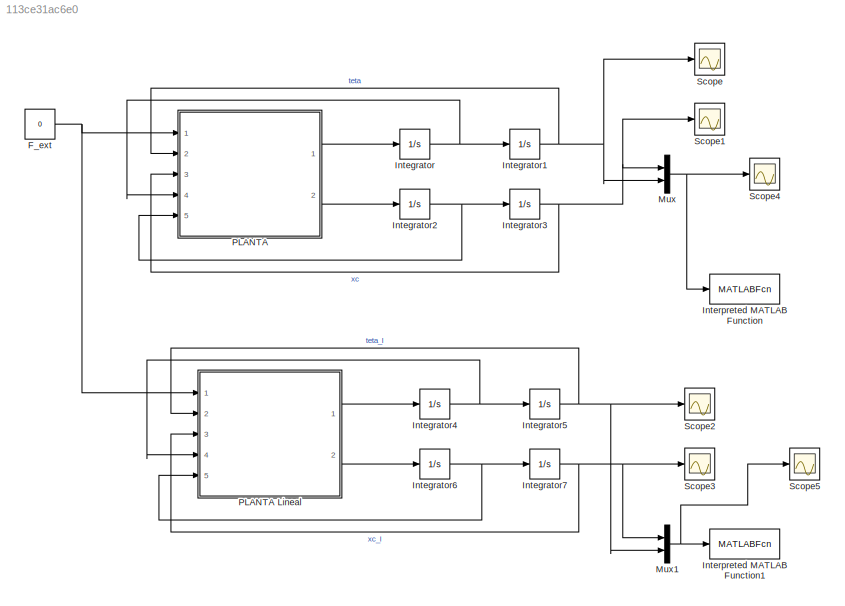
MODEL slx_113ce31ac6e0
KIND model
CONFIG AbsTol = auto
CONFIG EnableMultiTasking = off
CONFIG FixedStep = auto
CONFIG MaxStep = auto
CONFIG MinStep = auto
CONFIG RelTol = 1e-3
CONFIG SampleTimeConstraint = Unconstrained
CONFIG SolverName = VariableStepAuto
CONFIG StartTime = 0.0
CONFIG StopTime = 2
BLOCK [Constant] F_ext
  Value = 0
BLOCK [Integrator] Integrator
  InitialCondition = pi/4
  Ports = [1, 1]
BLOCK [Integrator] Integrator1
  Ports = [1, 1]
BLOCK [Integrator] Integrator2
  Ports = [1, 1]
BLOCK [Integrator] Integrator3
  Ports = [1, 1]
BLOCK [Integrator] Integrator4
  InitialCondition = pi/4
  Ports = [1, 1]
BLOCK [Integrator] Integrator5
  Ports = [1, 1]
BLOCK [Integrator] Integrator6
  Ports = [1, 1]
BLOCK [Integrator] Integrator7
  Ports = [1, 1]
BLOCK [MATLABFcn] Interpreted MATLAB Function
  Commented = on
  MATLABFcn = animacion_pendulo_carro
  OutputDimensions = 0
  Ports = [1]
BLOCK [MATLABFcn] Interpreted MATLAB Function1
  MATLABFcn = animacion_pendulo_carro
  OutputDimensions = 0
  Ports = [1]
BLOCK [Mux] Mux
  DisplayOption = bar
  Inputs = 2
  Ports = [2, 1]
BLOCK [Mux] Mux1
  DisplayOption = bar
  Inputs = 2
  Ports = [2, 1]
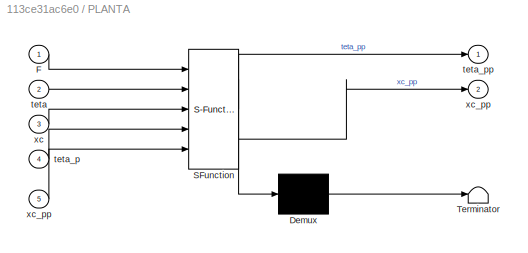
BLOCK [SubSystem] PLANTA
  ErrorFcn = Stateflow.Translate.translate
  PermitHierarchicalResolution = ExplicitOnly
  Ports = [5, 2]
  RequestExecContextInheritance = off
  SFBlockType = MATLAB Function
  TreatAsAtomicUnit = on
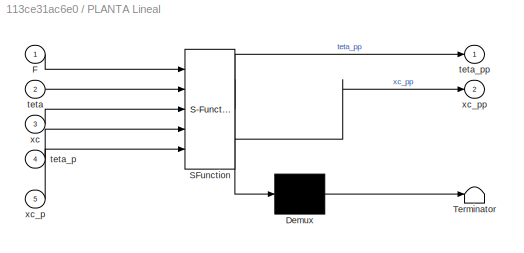
BLOCK [SubSystem] PLANTA Lineal
  ErrorFcn = Stateflow.Translate.translate
  PermitHierarchicalResolution = ExplicitOnly
  Ports = [5, 2]
  RequestExecContextInheritance = off
  SFBlockType = MATLAB Function
  TreatAsAtomicUnit = on
BLOCK [Demux] PLANTA Lineal/ Demux 
  Outputs = 1
  Ports = [1, 1]
BLOCK [S-Function] PLANTA Lineal/ SFunction 
  EnableBusSupport = on
  FunctionName = sf_sfun
  PortCounts = [5 3]
  Ports = [5, 3]
  SFcnIsStateOwnerBlock = off
  SFunctionDeploymentMode = off
  Tag = Stateflow S-Function 1
BLOCK [Terminator] PLANTA Lineal/ Terminator 
BLOCK [Inport] PLANTA Lineal/F
BLOCK [Inport] PLANTA Lineal/teta
  Port = 2
BLOCK [Inport] PLANTA Lineal/teta_p
  Port = 4
BLOCK [Outport] PLANTA Lineal/teta_pp
BLOCK [Inport] PLANTA Lineal/xc
  Port = 3
BLOCK [Inport] PLANTA Lineal/xc_p
  Port = 5
BLOCK [Outport] PLANTA Lineal/xc_pp
  Port = 2
BLOCK [Demux] PLANTA/ Demux 
  Outputs = 1
  Ports = [1, 1]
BLOCK [S-Function] PLANTA/ SFunction 
  EnableBusSupport = on
  FunctionName = sf_sfun
  PortCounts = [5 3]
  Ports = [5, 3]
  SFcnIsStateOwnerBlock = off
  SFunctionDeploymentMode = off
  Tag = Stateflow S-Function 2
BLOCK [Terminator] PLANTA/ Terminator 
BLOCK [Inport] PLANTA/F
BLOCK [Inport] PLANTA/teta
  Port = 2
BLOCK [Inport] PLANTA/teta_p
  Port = 4
BLOCK [Outport] PLANTA/teta_pp
BLOCK [Inport] PLANTA/xc
  Port = 3
BLOCK [Outport] PLANTA/xc_pp
  Port = 2
BLOCK [Inport] PLANTA/xc_pp 
  Port = 5
BLOCK [Scope] Scope
  Floating = off
  NumInputPorts = 1
  Ports = [1]
  ScopeSpecificationString = Simulink.scopes.TimeScopeBlockCfg('CurrentConfiguration', extmgr.ConfigurationSet(extmgr.Configuration('Core','General UI',true),extmgr.Configuration('Core','Source UI',true),extmgr.Configuration('Sources','WiredSimulink',true),extmgr.Configuration('Visuals','Time Domain',true,'SerializedDisplays',{struct('MinYLimReal','-0.86429','MaxYLimReal','7.77864','YLabelReal','','MinYLimMag','0.00000','MaxY...<+1356ch>
BLOCK [Scope] Scope1
  Floating = off
  NumInputPorts = 1
  Ports = [1]
  ScopeSpecificationString = Simulink.scopes.TimeScopeBlockCfg('CurrentConfiguration', extmgr.ConfigurationSet(extmgr.Configuration('Core','General UI',true),extmgr.Configuration('Core','Source UI',true),extmgr.Configuration('Sources','WiredSimulink',true,'DataLoggingVariableName','ScopeData1'),extmgr.Configuration('Visuals','Time Domain',true,'SerializedDisplays',{struct('MinYLimReal','-0.13554','MaxYLimReal','0.34381','YLab...<+1395ch>
BLOCK [Scope] Scope2
  Floating = off
  NumInputPorts = 1
  Ports = [1]
  ScopeSpecificationString = Simulink.scopes.TimeScopeBlockCfg('CurrentConfiguration', extmgr.ConfigurationSet(extmgr.Configuration('Core','General UI',true),extmgr.Configuration('Core','Source UI',true),extmgr.Configuration('Sources','WiredSimulink',true,'DataLoggingVariableName','ScopeData2'),extmgr.Configuration('Visuals','Time Domain',true,'SerializedDisplays',{struct('MinYLimReal','-466.03394','MaxYLimReal','4194.30545',...<+1417ch>
BLOCK [Scope] Scope3
  Floating = off
  NumInputPorts = 1
  Ports = [1]
  ScopeSpecificationString = Simulink.scopes.TimeScopeBlockCfg('CurrentConfiguration', extmgr.ConfigurationSet(extmgr.Configuration('Core','General UI',true),extmgr.Configuration('Core','Source UI',true),extmgr.Configuration('Sources','WiredSimulink',true,'DataLoggingVariableName','ScopeData3'),extmgr.Configuration('Visuals','Time Domain',true,'SerializedDisplays',{struct('MinYLimReal','-699.08279','MaxYLimReal','77.67587','Y...<+1407ch>
BLOCK [Scope] Scope4
  Floating = off
  NumInputPorts = 1
  Ports = [1]
  ScopeSpecificationString = Simulink.scopes.TimeScopeBlockCfg('CurrentConfiguration', extmgr.ConfigurationSet(extmgr.Configuration('Core','General UI',true),extmgr.Configuration('Core','Source UI',true),extmgr.Configuration('Sources','WiredSimulink',true,'DataLoggingVariableName','ScopeData1'),extmgr.Configuration('Visuals','Time Domain',true,'SerializedDisplays',{struct('MinYLimReal','-0.96285','MaxYLimReal','7.78959','YLab...<+1398ch>
BLOCK [Scope] Scope5
  Floating = off
  NumInputPorts = 1
  Ports = [1]
  ScopeSpecificationString = Simulink.scopes.TimeScopeBlockCfg('CurrentConfiguration', extmgr.ConfigurationSet(extmgr.Configuration('Core','General UI',true),extmgr.Configuration('Core','Source UI',true),extmgr.Configuration('Sources','WiredSimulink',true,'DataLoggingVariableName','ScopeData2'),extmgr.Configuration('Visuals','Time Domain',true,'SerializedDisplays',{struct('MinYLimReal','-1164.79034','MaxYLimReal','4271.94505'...<+1426ch>
NET F_ext:1 -> PLANTA Lineal:1, PLANTA:1
NET Integrator1:1 -> Mux:2, PLANTA:2, Scope:1
NET Integrator2:1 -> Integrator3:1, PLANTA:5
NET Integrator3:1 -> Mux:1, PLANTA:3, Scope1:1
NET Integrator4:1 -> Integrator5:1, PLANTA Lineal:4
NET Integrator5:1 -> Mux1:2, PLANTA Lineal:2, Scope2:1
NET Integrator6:1 -> Integrator7:1, PLANTA Lineal:5
NET Integrator7:1 -> Mux1:1, PLANTA Lineal:3, Scope3:1
NET Integrator:1 -> Integrator1:1, PLANTA:4
NET Mux1:1 -> Interpreted MATLAB Function1:1, Scope5:1
NET Mux:1 -> Interpreted MATLAB Function:1, Scope4:1
LINE PLANTA Lineal:1 -> Integrator4:1
LINE PLANTA Lineal:2 -> Integrator6:1
LINE PLANTA:1 -> Integrator:1
LINE PLANTA:2 -> Integrator2:1
note: NET lines group one-source signal fan-out (src -> all destinations, sorted); 1:1 wires keep LINE
CHART PLANTA Lineal states=1 transitions=1
  STATE_LABEL 'eML_blk_kernel()'
  STATE_LABEL 'SCRIPT:\nfunction [teta_pp, xc_pp] = fcn(F, teta, xc, teta_p, xc_p)\nm = 1;\nM = 2;\nl = 0.5;\nL = 1;\ng = 9.81;\n\n% sin(teta) ~= 0\n% xc_pp = F / (M + 2*m);\n% teta_pp = -F / (l * (M + 2*m));\n\n% sin(teta) ~= teta\n% xc_pp = (F - m * g * teta) / M;\n% teta_pp = (-F + (M + m) * g * teta) / M;\n\nA = [0, 1, 0, 0; \n    (M+m)*g/(M*l), 0, 0, 0; \n    0, 0, 0, 1; \n    -m*g/M, 0, 0, 0];\nB=[0; -1/(M*l); 0;  1/M];\nX = [...<+71ch>'
CHART PLANTA states=1 transitions=1
  STATE_LABEL 'eML_blk_kernel()'
  STATE_LABEL 'SCRIPT:\nfunction [teta_pp, xc_pp] = fcn(F, teta, xc, teta_p, xc_pp)\nm = 1;\nM = 2;\nl = 0.5;\nL = 1;\ng = 9.81;\n\ndet = ((M + m)*m*l^2 - (m*l*cos(teta))^2);\n\nxc_pp = (m*l^2 * (F + m*l*sin(teta) * teta_p^2)... \n            - m*l*cos(teta) * (m*g*l*sin(teta))) / det;\nteta_pp = (-m*l*cos(teta) * (F + m*l*sin(teta) * teta_p^2)...\n            + (M + m)*(m*g*l*sin(teta))) / det;        '
CHART  states=0 transitions=0
CHART  states=0 transitions=0
